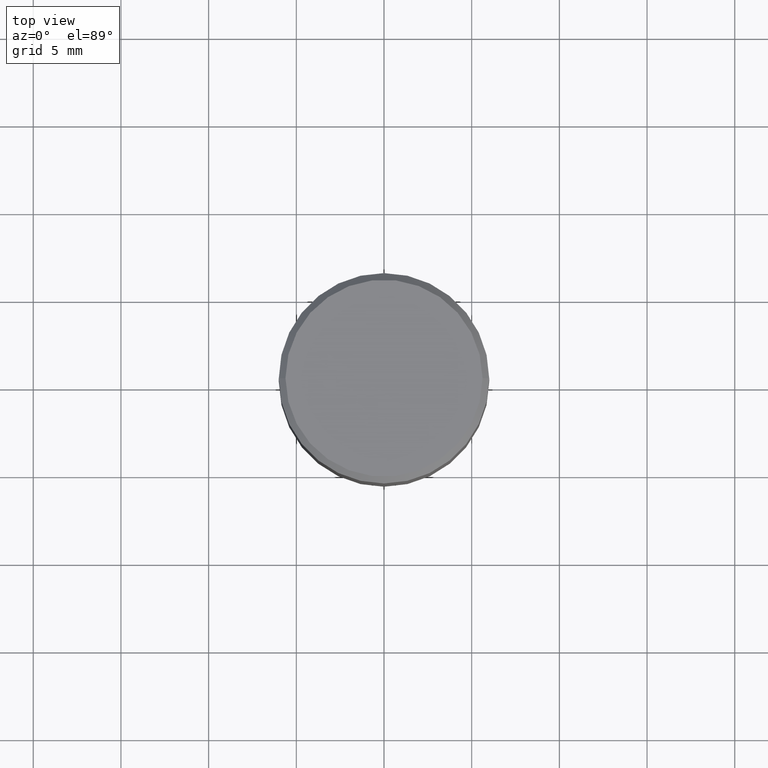
[diagram: clean part render]
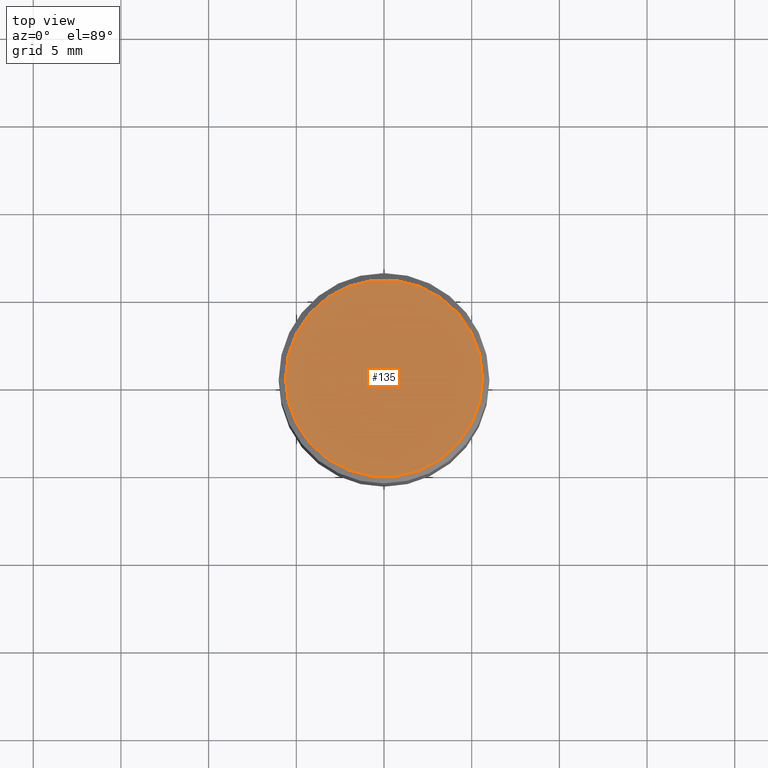
[diagram: same view with one face highlighted and labeled with its STEP entity id]
A machine part, top view. The second image highlights one B-rep face of the part: STEP entity #135.
In plain terms, the highlighted planar face has unit normal (0, -0, -1).
Its self-contained STEP definition (entity closure, byte-faithful):
#14 = DIRECTION ( 'NONE',  ( -2.445468806185136597E-29, 3.491481338843145583E-15, 1.000000000000000000 ) ) ;
#18 = VERTEX_POINT ( 'NONE', #164 ) ;
#38 = AXIS2_PLACEMENT_3D ( 'NONE', #382, #14, #194 ) ;
#71 = FACE_OUTER_BOUND ( 'NONE', #415, .T. ) ;
#105 = DIRECTION ( 'NONE',  ( -1.000000000000000000, 6.982962677686265922E-15, -4.876176775795935793E-29 ) ) ;
#110 = DIRECTION ( 'NONE',  ( -2.445468806185136597E-29, 3.491481338843145583E-15, 1.000000000000000000 ) ) ;
#135 = ADVANCED_FACE ( 'NONE', ( #71 ), #184, .F. ) ;
#142 = VERTEX_POINT ( 'NONE', #217 ) ;
#156 = ORIENTED_EDGE ( 'NONE', *, *, #294, .T. ) ;
#164 = CARTESIAN_POINT ( 'NONE',  ( 0.2212000000000000077, -1.595182002131672613E-15, 4.701447564593453826E-17 ) ) ;
#177 = CARTESIAN_POINT ( 'NONE',  ( 1.544631344304202170E-15, 0.2212000000000000077, -7.488084343291421542E-16 ) ) ;
#184 = PLANE ( 'NONE',  #313 ) ;
#192 = CIRCLE ( 'NONE', #38, 0.2212000000000000077 ) ;
#194 = DIRECTION ( 'NONE',  ( 1.000000000000000000, -6.982962677686267499E-15, 4.877828720335458505E-29 ) ) ;
#217 = CARTESIAN_POINT ( 'NONE',  ( -0.2212000000000000077, 1.570817454345525709E-15, 4.701447564591266586E-17 ) ) ;
#241 = AXIS2_PLACEMENT_3D ( 'NONE', #441, #110, #248 ) ;
#248 = DIRECTION ( 'NONE',  ( 1.000000000000000000, -6.982962677686267499E-15, 4.877828720335458505E-29 ) ) ;
#294 = EDGE_CURVE ( 'NONE', #18, #142, #192, .T. ) ;
#313 = AXIS2_PLACEMENT_3D ( 'NONE', #177, #363, #105 ) ;
#363 = DIRECTION ( 'NONE',  ( 2.438088387897960049E-29, -3.491481338843145188E-15, -1.000000000000000000 ) ) ;
#364 = ORIENTED_EDGE ( 'NONE', *, *, #443, .T. ) ;
#382 = CARTESIAN_POINT ( 'NONE',  ( -1.149724336312568861E-45, 1.641501643732376549E-31, 4.701447564592356200E-17 ) ) ;
#415 = EDGE_LOOP ( 'NONE', ( #364, #156 ) ) ;
#441 = CARTESIAN_POINT ( 'NONE',  ( -1.149724336312568861E-45, 1.641501643732376549E-31, 4.701447564592356200E-17 ) ) ;
#443 = EDGE_CURVE ( 'NONE', #142, #18, #455, .T. ) ;
#455 = CIRCLE ( 'NONE', #241, 0.2212000000000000077 ) ;